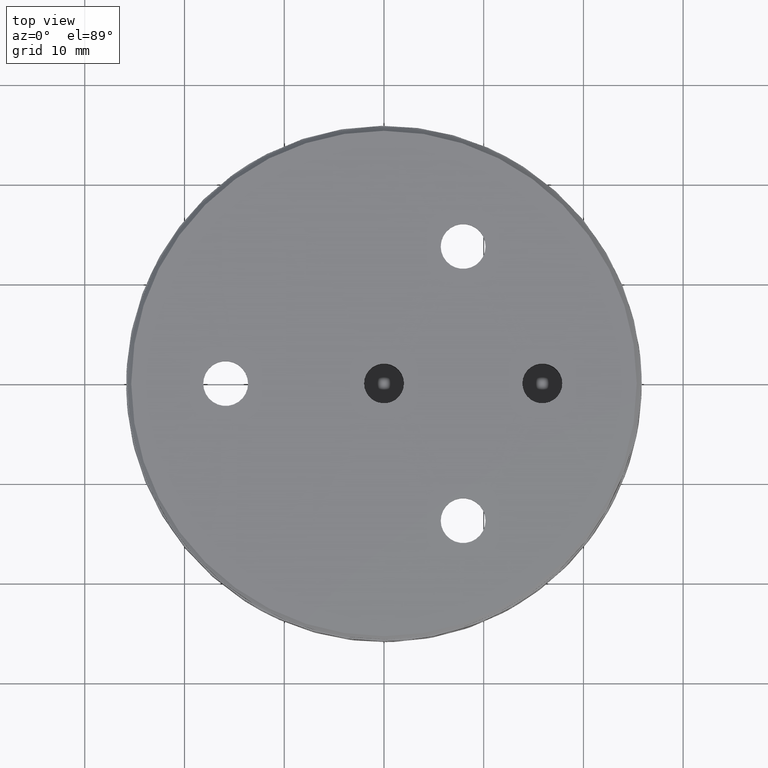
[diagram: clean part render]
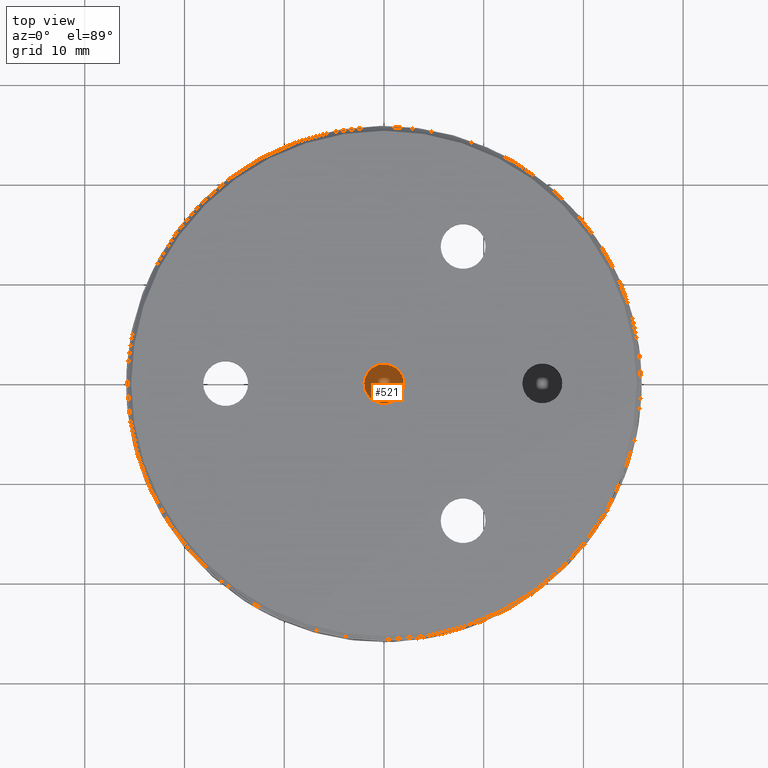
[diagram: same view with one face highlighted and labeled with its STEP entity id]
A machine part, top view. The second image highlights one B-rep face of the part: STEP entity #521.
In plain terms, the highlighted planar face has unit normal (0, 0, -1).
Its self-contained STEP definition (entity closure, byte-faithful):
#231 = ORIENTED_EDGE ( 'NONE', *, *, #343, .T. ) ;
#272 = PLANE ( 'NONE',  #1881 ) ;
#343 = EDGE_CURVE ( 'NONE', #2051, #2051, #3806, .T. ) ;
#521 = ADVANCED_FACE ( 'NONE', ( #1431 ), #272, .F. ) ;
#574 = DIRECTION ( 'NONE',  ( 0.000000000000000000, 0.000000000000000000, -1.000000000000000000 ) ) ;
#836 = CARTESIAN_POINT ( 'NONE',  ( 1.999999999999999112, 0.000000000000000000, -1.000000000000000000 ) ) ;
#869 = CARTESIAN_POINT ( 'NONE',  ( 0.000000000000000000, 0.000000000000000000, -1.000000000000000000 ) ) ;
#1146 = DIRECTION ( 'NONE',  ( 0.000000000000000000, 0.000000000000000000, 1.000000000000000000 ) ) ;
#1431 = FACE_OUTER_BOUND ( 'NONE', #3133, .T. ) ;
#1516 = AXIS2_PLACEMENT_3D ( 'NONE', #869, #1146, #1756 ) ;
#1703 = CARTESIAN_POINT ( 'NONE',  ( -9.797174393178827630E-16, 0.000000000000000000, -1.000000000000000000 ) ) ;
#1756 = DIRECTION ( 'NONE',  ( 1.000000000000000000, 0.000000000000000000, 0.000000000000000000 ) ) ;
#1881 = AXIS2_PLACEMENT_3D ( 'NONE', #1703, #574, #2330 ) ;
#2051 = VERTEX_POINT ( 'NONE', #836 ) ;
#2330 = DIRECTION ( 'NONE',  ( -1.000000000000000000, 0.000000000000000000, -0.000000000000000000 ) ) ;
#3133 = EDGE_LOOP ( 'NONE', ( #231 ) ) ;
#3806 = CIRCLE ( 'NONE', #1516, 1.999999999999999112 ) ;